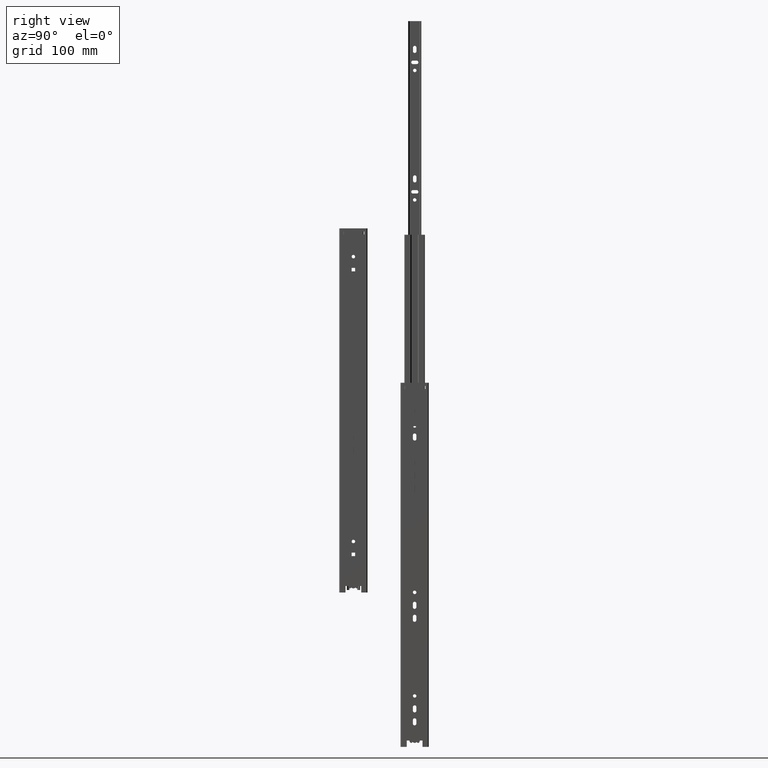
[diagram: clean part render]
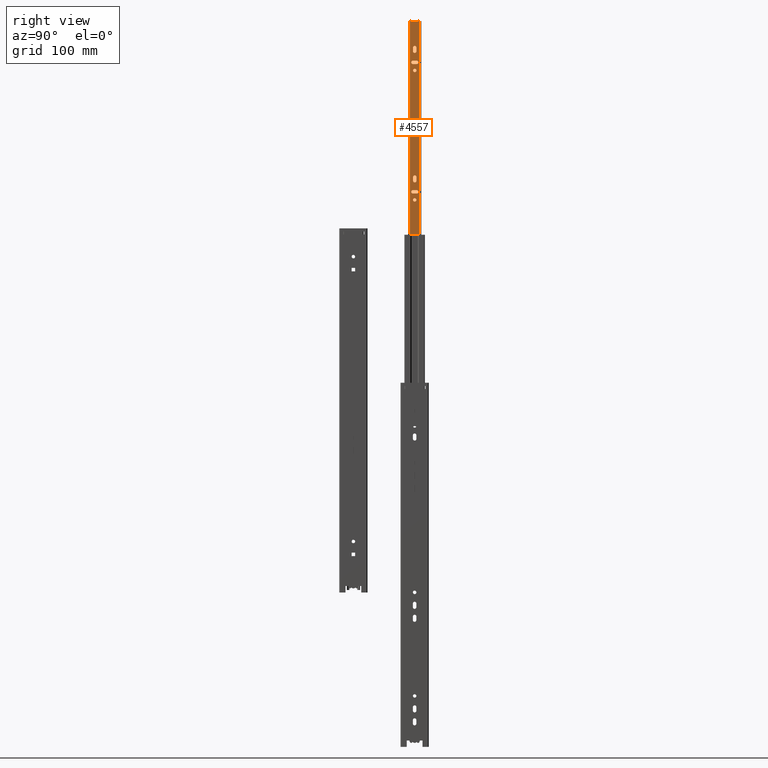
[diagram: same view with one face highlighted and labeled with its STEP entity id]
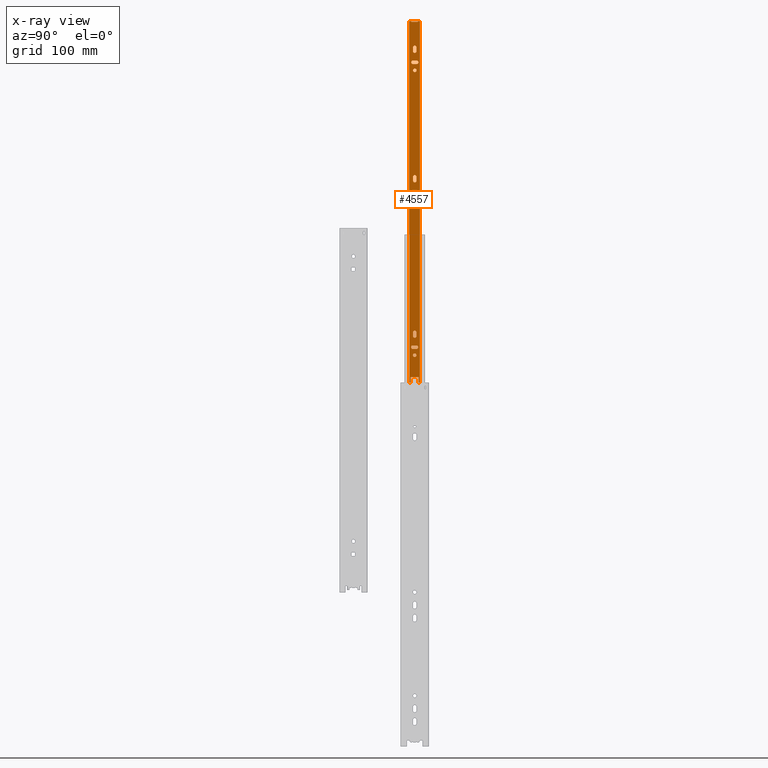
[diagram: x-ray of the same camera — body ghosted, the highlighted face saturated]
A machine part, right view. The second image highlights one B-rep face of the part: STEP entity #4557.
The next image is the same camera in x-ray: the body ghosted, the highlighted face saturated — about 0% of this face is hidden behind the body in this view.
In plain terms, the highlighted planar face has unit normal (1, 0, -0).
Its self-contained STEP definition (entity closure, byte-faithful):
#215=FACE_BOUND('',#860,.T.);
#216=FACE_BOUND('',#861,.T.);
#217=FACE_BOUND('',#862,.T.);
#218=FACE_BOUND('',#863,.T.);
#219=FACE_BOUND('',#864,.T.);
#220=FACE_BOUND('',#865,.T.);
#221=FACE_BOUND('',#866,.T.);
#222=FACE_BOUND('',#867,.T.);
#223=FACE_BOUND('',#868,.T.);
#327=CIRCLE('',#4865,2.15);
#329=CIRCLE('',#4869,2.15);
#331=CIRCLE('',#4873,2.15);
#333=CIRCLE('',#4877,2.15);
#335=CIRCLE('',#4881,2.15);
#337=CIRCLE('',#4885,2.14999999999995);
#339=CIRCLE('',#4889,2.15);
#341=CIRCLE('',#4892,2.15);
#343=CIRCLE('',#4895,2.15);
#345=CIRCLE('',#4898,2.15);
#347=CIRCLE('',#4902,2.15);
#349=CIRCLE('',#4906,2.15);
#351=CIRCLE('',#4910,2.15);
#353=CIRCLE('',#4914,2.15000000000001);
#355=CIRCLE('',#4918,2.14999999999999);
#581=FACE_OUTER_BOUND('',#859,.T.);
#859=EDGE_LOOP('',(#3792,#3793,#3794,#3795,#3796,#3797,#3798,#3799,#3800,
#3801,#3802,#3803));
#860=EDGE_LOOP('',(#3804,#3805,#3806,#3807));
#861=EDGE_LOOP('',(#3808,#3809,#3810,#3811));
#862=EDGE_LOOP('',(#3812,#3813,#3814,#3815));
#863=EDGE_LOOP('',(#3816));
#864=EDGE_LOOP('',(#3817));
#865=EDGE_LOOP('',(#3818));
#866=EDGE_LOOP('',(#3819,#3820,#3821,#3822));
#867=EDGE_LOOP('',(#3823,#3824,#3825,#3826));
#868=EDGE_LOOP('',(#3827,#3828,#3829,#3830));
#1205=LINE('',#7171,#1669);
#1209=LINE('',#7179,#1673);
#1212=LINE('',#7185,#1676);
#1218=LINE('',#7202,#1682);
#1222=LINE('',#7213,#1686);
#1226=LINE('',#7226,#1690);
#1230=LINE('',#7237,#1694);
#1234=LINE('',#7250,#1698);
#1238=LINE('',#7261,#1702);
#1242=LINE('',#7289,#1706);
#1246=LINE('',#7300,#1710);
#1250=LINE('',#7313,#1714);
#1254=LINE('',#7324,#1718);
#1258=LINE('',#7337,#1722);
#1262=LINE('',#7348,#1726);
#1264=LINE('',#7353,#1728);
#1268=LINE('',#7361,#1732);
#1271=LINE('',#7367,#1735);
#1277=LINE('',#7386,#1741);
#1278=LINE('',#7389,#1742);
#1279=LINE('',#7391,#1743);
#1280=LINE('',#7392,#1744);
#1281=LINE('',#7394,#1745);
#1282=LINE('',#7395,#1746);
#1669=VECTOR('',#5781,1.00000000000001);
#1673=VECTOR('',#5787,8.);
#1676=VECTOR('',#5792,1.00000000000001);
#1682=VECTOR('',#5808,4.50000000000003);
#1686=VECTOR('',#5820,4.50000000000003);
#1690=VECTOR('',#5832,4.5);
#1694=VECTOR('',#5844,4.5);
#1698=VECTOR('',#5856,4.5);
#1702=VECTOR('',#5868,4.5);
#1706=VECTOR('',#5898,4.50000000000003);
#1710=VECTOR('',#5910,4.50000000000003);
#1714=VECTOR('',#5922,4.50000000000001);
#1718=VECTOR('',#5934,4.50000000000001);
#1722=VECTOR('',#5946,4.50000000000003);
#1726=VECTOR('',#5958,4.50000000000003);
#1728=VECTOR('',#5962,10.);
#1732=VECTOR('',#5968,7.00000000000003);
#1735=VECTOR('',#5973,7.00000000000003);
#1741=VECTOR('',#5989,1.50162665276701);
#1742=VECTOR('',#5992,2.50162665276703);
#1743=VECTOR('',#5993,447.);
#1744=VECTOR('',#5994,1.50162665276705);
#1745=VECTOR('',#5995,447.);
#1746=VECTOR('',#5996,2.50162665276703);
#2115=VERTEX_POINT('',#7169);
#2116=VERTEX_POINT('',#7170);
#2119=VERTEX_POINT('',#7178);
#2121=VERTEX_POINT('',#7184);
#2123=VERTEX_POINT('',#7192);
#2124=VERTEX_POINT('',#7193);
#2127=VERTEX_POINT('',#7201);
#2129=VERTEX_POINT('',#7207);
#2131=VERTEX_POINT('',#7216);
#2132=VERTEX_POINT('',#7217);
#2135=VERTEX_POINT('',#7225);
#2137=VERTEX_POINT('',#7231);
#2139=VERTEX_POINT('',#7240);
#2140=VERTEX_POINT('',#7241);
#2143=VERTEX_POINT('',#7249);
#2145=VERTEX_POINT('',#7255);
#2147=VERTEX_POINT('',#7264);
#2149=VERTEX_POINT('',#7269);
#2151=VERTEX_POINT('',#7274);
#2153=VERTEX_POINT('',#7279);
#2154=VERTEX_POINT('',#7280);
#2157=VERTEX_POINT('',#7288);
#2159=VERTEX_POINT('',#7294);
#2161=VERTEX_POINT('',#7303);
#2162=VERTEX_POINT('',#7304);
#2165=VERTEX_POINT('',#7312);
#2167=VERTEX_POINT('',#7318);
#2169=VERTEX_POINT('',#7327);
#2170=VERTEX_POINT('',#7328);
#2173=VERTEX_POINT('',#7336);
#2175=VERTEX_POINT('',#7342);
#2177=VERTEX_POINT('',#7351);
#2178=VERTEX_POINT('',#7352);
#2181=VERTEX_POINT('',#7360);
#2183=VERTEX_POINT('',#7366);
#2191=VERTEX_POINT('',#7384);
#2192=VERTEX_POINT('',#7388);
#2193=VERTEX_POINT('',#7390);
#2194=VERTEX_POINT('',#7393);
#2655=EDGE_CURVE('',#2115,#2116,#1205,.T.);
#2659=EDGE_CURVE('',#2116,#2119,#1209,.T.);
#2662=EDGE_CURVE('',#2119,#2121,#1212,.T.);
#2666=EDGE_CURVE('',#2123,#2124,#327,.T.);
#2670=EDGE_CURVE('',#2124,#2127,#1218,.T.);
#2673=EDGE_CURVE('',#2127,#2129,#329,.T.);
#2676=EDGE_CURVE('',#2129,#2123,#1222,.T.);
#2678=EDGE_CURVE('',#2131,#2132,#331,.T.);
#2682=EDGE_CURVE('',#2132,#2135,#1226,.T.);
#2685=EDGE_CURVE('',#2135,#2137,#333,.T.);
#2688=EDGE_CURVE('',#2137,#2131,#1230,.T.);
#2690=EDGE_CURVE('',#2139,#2140,#335,.T.);
#2694=EDGE_CURVE('',#2140,#2143,#1234,.T.);
#2697=EDGE_CURVE('',#2143,#2145,#337,.T.);
#2700=EDGE_CURVE('',#2145,#2139,#1238,.T.);
#2702=EDGE_CURVE('',#2147,#2147,#339,.T.);
#2704=EDGE_CURVE('',#2149,#2149,#341,.T.);
#2706=EDGE_CURVE('',#2151,#2151,#343,.T.);
#2708=EDGE_CURVE('',#2153,#2154,#345,.T.);
#2712=EDGE_CURVE('',#2154,#2157,#1242,.T.);
#2715=EDGE_CURVE('',#2157,#2159,#347,.T.);
#2718=EDGE_CURVE('',#2159,#2153,#1246,.T.);
#2720=EDGE_CURVE('',#2161,#2162,#349,.T.);
#2724=EDGE_CURVE('',#2162,#2165,#1250,.T.);
#2727=EDGE_CURVE('',#2165,#2167,#351,.T.);
#2730=EDGE_CURVE('',#2167,#2161,#1254,.T.);
#2732=EDGE_CURVE('',#2169,#2170,#353,.T.);
#2736=EDGE_CURVE('',#2170,#2173,#1258,.T.);
#2739=EDGE_CURVE('',#2173,#2175,#355,.T.);
#2742=EDGE_CURVE('',#2175,#2169,#1262,.T.);
#2744=EDGE_CURVE('',#2177,#2178,#1264,.T.);
#2748=EDGE_CURVE('',#2178,#2181,#1268,.T.);
#2751=EDGE_CURVE('',#2183,#2177,#1271,.T.);
#2761=EDGE_CURVE('',#2191,#2181,#1277,.T.);
#2762=EDGE_CURVE('',#2192,#2121,#1278,.T.);
#2763=EDGE_CURVE('',#2193,#2192,#1279,.T.);
#2764=EDGE_CURVE('',#2183,#2193,#1280,.T.);
#2765=EDGE_CURVE('',#2191,#2194,#1281,.T.);
#2766=EDGE_CURVE('',#2115,#2194,#1282,.T.);
#3792=ORIENTED_EDGE('',*,*,#2662,.T.);
#3793=ORIENTED_EDGE('',*,*,#2762,.F.);
#3794=ORIENTED_EDGE('',*,*,#2763,.F.);
#3795=ORIENTED_EDGE('',*,*,#2764,.F.);
#3796=ORIENTED_EDGE('',*,*,#2751,.T.);
#3797=ORIENTED_EDGE('',*,*,#2744,.T.);
#3798=ORIENTED_EDGE('',*,*,#2748,.T.);
#3799=ORIENTED_EDGE('',*,*,#2761,.F.);
#3800=ORIENTED_EDGE('',*,*,#2765,.T.);
#3801=ORIENTED_EDGE('',*,*,#2766,.F.);
#3802=ORIENTED_EDGE('',*,*,#2655,.T.);
#3803=ORIENTED_EDGE('',*,*,#2659,.T.);
#3804=ORIENTED_EDGE('',*,*,#2739,.T.);
#3805=ORIENTED_EDGE('',*,*,#2742,.T.);
#3806=ORIENTED_EDGE('',*,*,#2732,.T.);
#3807=ORIENTED_EDGE('',*,*,#2736,.T.);
#3808=ORIENTED_EDGE('',*,*,#2727,.T.);
#3809=ORIENTED_EDGE('',*,*,#2730,.T.);
#3810=ORIENTED_EDGE('',*,*,#2720,.T.);
#3811=ORIENTED_EDGE('',*,*,#2724,.T.);
#3812=ORIENTED_EDGE('',*,*,#2715,.T.);
#3813=ORIENTED_EDGE('',*,*,#2718,.T.);
#3814=ORIENTED_EDGE('',*,*,#2708,.T.);
#3815=ORIENTED_EDGE('',*,*,#2712,.T.);
#3816=ORIENTED_EDGE('',*,*,#2706,.T.);
#3817=ORIENTED_EDGE('',*,*,#2704,.T.);
#3818=ORIENTED_EDGE('',*,*,#2702,.T.);
#3819=ORIENTED_EDGE('',*,*,#2697,.T.);
#3820=ORIENTED_EDGE('',*,*,#2700,.T.);
#3821=ORIENTED_EDGE('',*,*,#2690,.T.);
#3822=ORIENTED_EDGE('',*,*,#2694,.T.);
#3823=ORIENTED_EDGE('',*,*,#2685,.T.);
#3824=ORIENTED_EDGE('',*,*,#2688,.T.);
#3825=ORIENTED_EDGE('',*,*,#2678,.T.);
#3826=ORIENTED_EDGE('',*,*,#2682,.T.);
#3827=ORIENTED_EDGE('',*,*,#2673,.T.);
#3828=ORIENTED_EDGE('',*,*,#2676,.T.);
#3829=ORIENTED_EDGE('',*,*,#2666,.T.);
#3830=ORIENTED_EDGE('',*,*,#2670,.T.);
#4351=PLANE('',#4929);
#4557=ADVANCED_FACE('',(#581,#215,#216,#217,#218,#219,#220,#221,#222,#223),
#4351,.T.);
#4865=AXIS2_PLACEMENT_3D('',#7194,#5800,#5801);
#4869=AXIS2_PLACEMENT_3D('',#7208,#5813,#5814);
#4873=AXIS2_PLACEMENT_3D('',#7218,#5824,#5825);
#4877=AXIS2_PLACEMENT_3D('',#7232,#5837,#5838);
#4881=AXIS2_PLACEMENT_3D('',#7242,#5848,#5849);
#4885=AXIS2_PLACEMENT_3D('',#7256,#5861,#5862);
#4889=AXIS2_PLACEMENT_3D('',#7265,#5872,#5873);
#4892=AXIS2_PLACEMENT_3D('',#7270,#5878,#5879);
#4895=AXIS2_PLACEMENT_3D('',#7275,#5884,#5885);
#4898=AXIS2_PLACEMENT_3D('',#7281,#5890,#5891);
#4902=AXIS2_PLACEMENT_3D('',#7295,#5903,#5904);
#4906=AXIS2_PLACEMENT_3D('',#7305,#5914,#5915);
#4910=AXIS2_PLACEMENT_3D('',#7319,#5927,#5928);
#4914=AXIS2_PLACEMENT_3D('',#7329,#5938,#5939);
#4918=AXIS2_PLACEMENT_3D('',#7343,#5951,#5952);
#4929=AXIS2_PLACEMENT_3D('',#7387,#5990,#5991);
#5781=DIRECTION('',(0.,0.,-1.));
#5787=DIRECTION('',(1.14409741780894E-13,-1.,-1.38777878078145E-16));
#5792=DIRECTION('',(-1.27020329566567E-28,1.11022302462516E-15,1.));
#5800=DIRECTION('center_axis',(-1.,-1.14409741780894E-13,0.));
#5801=DIRECTION('ref_axis',(0.,1.,0.));
#5808=DIRECTION('',(-2.82267399036815E-29,2.46716227694478E-16,-1.));
#5813=DIRECTION('center_axis',(-1.,-1.14409741780894E-13,0.));
#5814=DIRECTION('ref_axis',(0.,-1.,0.));
#5820=DIRECTION('',(0.,0.,1.));
#5824=DIRECTION('center_axis',(-1.,-1.14409741780894E-13,0.));
#5825=DIRECTION('ref_axis',(0.,0.00289259726713504,0.999995816431774));
#5832=DIRECTION('',(1.14409263139934E-13,-0.999995816431774,0.00289259726713453));
#5837=DIRECTION('center_axis',(-1.,-1.14409741780894E-13,0.));
#5838=DIRECTION('ref_axis',(0.,-0.0028925972671356,-0.999995816431774));
#5844=DIRECTION('',(-1.14409263139934E-13,0.999995816431774,-0.00289259726713453));
#5848=DIRECTION('center_axis',(-1.,-1.14409741780894E-13,0.));
#5849=DIRECTION('ref_axis',(0.,-5.16382802151227E-16,1.));
#5856=DIRECTION('',(1.14409741780894E-13,-1.,-1.57898385724467E-14));
#5861=DIRECTION('center_axis',(-1.,-1.14409741780894E-13,0.));
#5862=DIRECTION('ref_axis',(0.,2.58191401075622E-16,-1.));
#5868=DIRECTION('',(-1.14409741780894E-13,1.,0.));
#5872=DIRECTION('center_axis',(-1.,-1.14409741780894E-13,0.));
#5873=DIRECTION('ref_axis',(0.,0.,-1.));
#5878=DIRECTION('center_axis',(-1.,-1.14409741780894E-13,0.));
#5879=DIRECTION('ref_axis',(0.,0.,-1.));
#5884=DIRECTION('center_axis',(-1.,-1.14409741780894E-13,0.));
#5885=DIRECTION('ref_axis',(0.,0.,-1.));
#5890=DIRECTION('center_axis',(-1.,-1.14409741780894E-13,0.));
#5891=DIRECTION('ref_axis',(0.,1.,0.));
#5898=DIRECTION('',(0.,0.,-1.));
#5903=DIRECTION('center_axis',(-1.,-1.14409741780894E-13,0.));
#5904=DIRECTION('ref_axis',(0.,-1.,0.));
#5910=DIRECTION('',(5.64534798073629E-29,-4.93432455388955E-16,1.));
#5914=DIRECTION('center_axis',(-1.,-1.14409741780894E-13,0.));
#5915=DIRECTION('ref_axis',(0.,0.,1.));
#5922=DIRECTION('',(1.14409741780894E-13,-1.,0.));
#5927=DIRECTION('center_axis',(-1.,-1.14409741780894E-13,0.));
#5928=DIRECTION('ref_axis',(0.,0.,-1.));
#5934=DIRECTION('',(-1.14409741780894E-13,1.,1.97372982155583E-15));
#5938=DIRECTION('center_axis',(-1.,-1.14409741780894E-13,0.));
#5939=DIRECTION('ref_axis',(0.,-1.,0.));
#5946=DIRECTION('',(0.,0.,-1.));
#5951=DIRECTION('center_axis',(-1.,-1.14409741780894E-13,0.));
#5952=DIRECTION('ref_axis',(0.,1.,0.));
#5958=DIRECTION('',(0.,0.,1.));
#5962=DIRECTION('',(-1.14409741780894E-13,1.,0.));
#5968=DIRECTION('',(0.,0.,-1.));
#5973=DIRECTION('',(-9.07288068332621E-30,7.93016446160823E-17,1.));
#5989=DIRECTION('',(1.14409741780894E-13,-1.,0.));
#5990=DIRECTION('center_axis',(1.,1.14409741780894E-13,0.));
#5991=DIRECTION('ref_axis',(-1.14397380457376E-13,1.,0.));
#5992=DIRECTION('',(-1.14409741780894E-13,1.,0.));
#5993=DIRECTION('',(0.,0.,1.));
#5994=DIRECTION('',(1.14409741780894E-13,-1.,0.));
#5995=DIRECTION('',(0.,0.,1.));
#5996=DIRECTION('',(-1.14409741780894E-13,1.,0.));
#7169=CARTESIAN_POINT('',(-9.7487035666142,30.6493539975594,223.5));
#7170=CARTESIAN_POINT('',(-9.7487035666142,30.6493539975594,222.5));
#7171=CARTESIAN_POINT('',(-9.7487035666142,30.6493539975594,111.25));
#7178=CARTESIAN_POINT('',(-9.74870356661328,22.6493539975594,222.5));
#7179=CARTESIAN_POINT('',(-9.74870356661314,21.3985406711759,222.5));
#7184=CARTESIAN_POINT('',(-9.74870356661328,22.6493539975594,223.5));
#7185=CARTESIAN_POINT('',(-9.74870356661328,22.6493539975593,111.75));
#7192=CARTESIAN_POINT('',(-9.74870356661352,24.6993539975594,30.75));
#7193=CARTESIAN_POINT('',(-9.74870356661401,28.9993539975594,30.75));
#7194=CARTESIAN_POINT('Origin',(-9.748703566613,26.8493539975594,30.75));
#7201=CARTESIAN_POINT('',(-9.74870356661401,28.9993539975594,26.25));
#7202=CARTESIAN_POINT('',(-9.74870356661401,28.9993539975594,13.125));
#7207=CARTESIAN_POINT('',(-9.74870356661352,24.6993539975594,26.25));
#7208=CARTESIAN_POINT('Origin',(-9.748703566613,26.8493539975594,26.25));
#7213=CARTESIAN_POINT('',(-9.74870356661352,24.6993539975594,15.375));
#7216=CARTESIAN_POINT('',(-9.74870356661402,29.1055636686552,14.6434826614773));
#7217=CARTESIAN_POINT('',(-9.74870356661402,29.0931255004065,10.3435006508207));
#7218=CARTESIAN_POINT('Origin',(-9.748703566613,29.0993445845309,12.4934916561489));
#7225=CARTESIAN_POINT('',(-9.7487035666135,24.5931443264636,10.3565173385228));
#7226=CARTESIAN_POINT('',(-9.74870356661325,22.3854329875055,10.3629033850249));
#7231=CARTESIAN_POINT('',(-9.74870356661351,24.6055824947122,14.6564993491794));
#7232=CARTESIAN_POINT('Origin',(-9.748703566613,24.5993634105879,12.5065083438511));
#7237=CARTESIAN_POINT('',(-9.74870356661351,24.6478617427257,14.6563770518305));
#7240=CARTESIAN_POINT('',(-9.748703566614,28.8993539975594,-177.35));
#7241=CARTESIAN_POINT('',(-9.748703566614,28.8993539975594,-181.65));
#7242=CARTESIAN_POINT('Origin',(-9.748703566613,28.8993539975594,-179.5));
#7249=CARTESIAN_POINT('',(-9.74870356661348,24.3993539975594,-181.65));
#7250=CARTESIAN_POINT('',(-9.74870356661324,22.2735406711774,-181.65));
#7255=CARTESIAN_POINT('',(-9.74870356661348,24.3993539975594,-177.35));
#7256=CARTESIAN_POINT('Origin',(-9.748703566613,24.3993539975594,-179.5));
#7261=CARTESIAN_POINT('',(-9.7487035666135,24.5235406711759,-177.35));
#7264=CARTESIAN_POINT('',(-9.748703566613,26.8493539975594,164.65));
#7265=CARTESIAN_POINT('Origin',(-9.748703566613,26.8493539975594,162.5));
#7269=CARTESIAN_POINT('',(-9.748703566613,26.6493539975594,-187.35));
#7270=CARTESIAN_POINT('Origin',(-9.748703566613,26.6493539975594,-189.5));
#7274=CARTESIAN_POINT('',(-9.748703566613,26.7493539975594,4.65));
#7275=CARTESIAN_POINT('Origin',(-9.748703566613,26.7493539975594,2.5));
#7279=CARTESIAN_POINT('',(-9.74870356661351,24.5993539975594,-161.25));
#7280=CARTESIAN_POINT('',(-9.748703566614,28.8993539975594,-161.25));
#7281=CARTESIAN_POINT('Origin',(-9.748703566613,26.7493539975594,-161.25));
#7288=CARTESIAN_POINT('',(-9.748703566614,28.8993539975594,-165.75));
#7289=CARTESIAN_POINT('',(-9.748703566614,28.8993539975594,-82.875));
#7294=CARTESIAN_POINT('',(-9.74870356661351,24.5993539975594,-165.75));
#7295=CARTESIAN_POINT('Origin',(-9.748703566613,26.7493539975594,-165.75));
#7300=CARTESIAN_POINT('',(-9.74870356661351,24.5993539975593,-80.625));
#7303=CARTESIAN_POINT('',(-9.74870356661402,29.0993539975594,174.65));
#7304=CARTESIAN_POINT('',(-9.74870356661402,29.0993539975594,170.35));
#7305=CARTESIAN_POINT('Origin',(-9.748703566613,29.0993539975594,172.5));
#7312=CARTESIAN_POINT('',(-9.74870356661351,24.5993539975594,170.35));
#7313=CARTESIAN_POINT('',(-9.74870356661325,22.3735406711759,170.35));
#7318=CARTESIAN_POINT('',(-9.74870356661351,24.5993539975594,174.65));
#7319=CARTESIAN_POINT('Origin',(-9.748703566613,24.5993539975594,172.5));
#7324=CARTESIAN_POINT('',(-9.74870356661351,24.6235406711758,174.65));
#7327=CARTESIAN_POINT('',(-9.74870356661351,24.5993539975594,190.75));
#7328=CARTESIAN_POINT('',(-9.748703566614,28.8993539975594,190.75));
#7329=CARTESIAN_POINT('Origin',(-9.748703566613,26.7493539975594,190.75));
#7336=CARTESIAN_POINT('',(-9.748703566614,28.8993539975594,186.25));
#7337=CARTESIAN_POINT('',(-9.748703566614,28.8993539975594,93.125));
#7342=CARTESIAN_POINT('',(-9.74870356661351,24.5993539975594,186.25));
#7343=CARTESIAN_POINT('Origin',(-9.748703566613,26.7493539975594,186.25));
#7348=CARTESIAN_POINT('',(-9.74870356661351,24.5993539975594,95.375));
#7351=CARTESIAN_POINT('',(-9.74870356661317,21.6493539975594,-216.5));
#7352=CARTESIAN_POINT('',(-9.74870356661431,31.6493539975594,-216.5));
#7353=CARTESIAN_POINT('',(-9.74870356661365,25.8985406711759,-216.5));
#7360=CARTESIAN_POINT('',(-9.74870356661431,31.6493539975594,-223.5));
#7361=CARTESIAN_POINT('',(-9.74870356661431,31.6493539975594,-111.75));
#7366=CARTESIAN_POINT('',(-9.74870356661317,21.6493539975594,-223.5));
#7367=CARTESIAN_POINT('',(-9.74870356661317,21.6493539975594,-108.25));
#7384=CARTESIAN_POINT('',(-9.74870356661448,33.1509806503264,-223.5));
#7386=CARTESIAN_POINT('',(-9.748703566613,20.1477273447924,-223.5));
#7387=CARTESIAN_POINT('Origin',(-9.748703566613,20.1477273447924,0.));
#7388=CARTESIAN_POINT('',(-9.748703566613,20.1477273447924,223.5));
#7389=CARTESIAN_POINT('',(-9.748703566613,20.1477273447924,223.5));
#7390=CARTESIAN_POINT('',(-9.748703566613,20.1477273447924,-223.5));
#7391=CARTESIAN_POINT('',(-9.748703566613,20.1477273447924,0.));
#7392=CARTESIAN_POINT('',(-9.748703566613,20.1477273447924,-223.5));
#7393=CARTESIAN_POINT('',(-9.74870356661448,33.1509806503264,223.5));
#7394=CARTESIAN_POINT('',(-9.74870356661448,33.1509806503264,0.));
#7395=CARTESIAN_POINT('',(-9.748703566613,20.1477273447924,223.5));